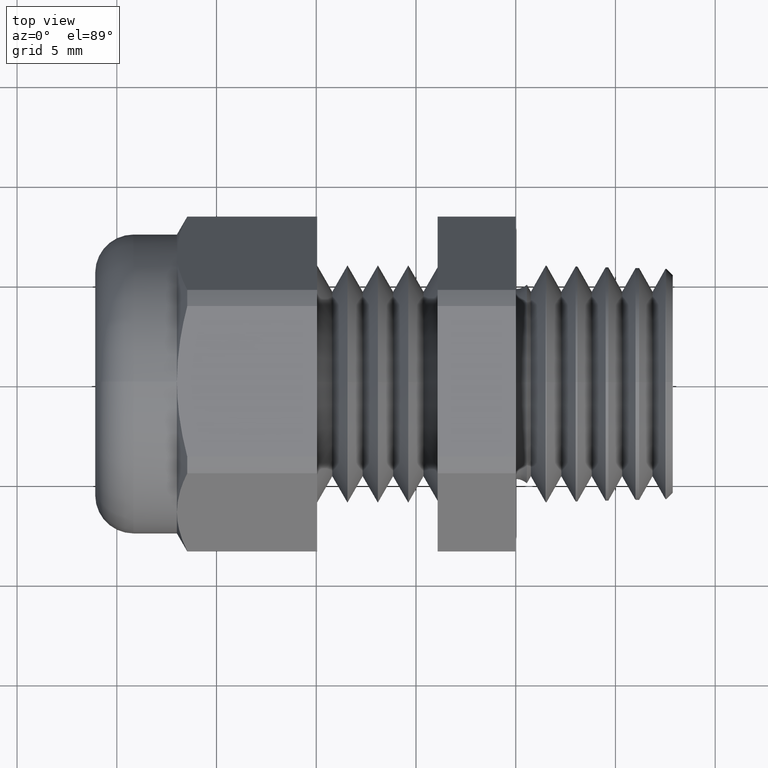
[diagram: clean part render]
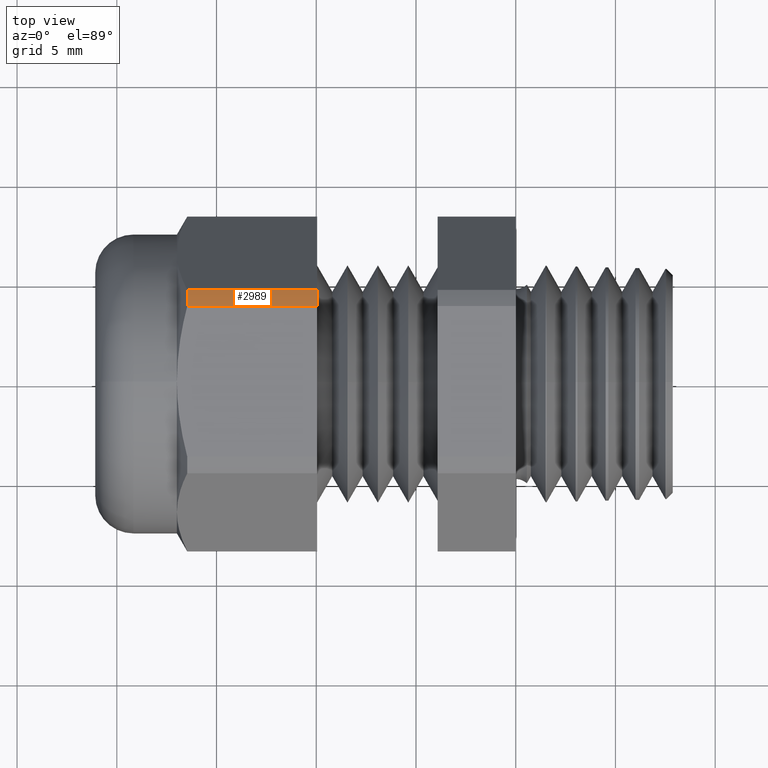
[diagram: same view with one face highlighted and labeled with its STEP entity id]
A machine part, top view. The second image highlights one B-rep face of the part: STEP entity #2989.
In plain terms, the highlighted cylindrical surface (partial cylindrical patch) has radius 8.3922 mm, axis along (-1, 0, 0).
Its self-contained STEP definition (entity closure, byte-faithful):
#77 = EDGE_LOOP ( 'NONE', ( #505, #485, #500, #492 ) ) ;
#485 = ORIENTED_EDGE ( 'NONE', *, *, #504, .T. ) ;
#486 = EDGE_CURVE ( 'NONE', #487, #488, #1767, .T. ) ;
#487 = VERTEX_POINT ( 'NONE', #1758 ) ;
#488 = VERTEX_POINT ( 'NONE', #1757 ) ;
#490 = VERTEX_POINT ( 'NONE', #1756 ) ;
#491 = EDGE_CURVE ( 'NONE', #501, #490, #1754, .T. ) ;
#492 = ORIENTED_EDGE ( 'NONE', *, *, #494, .F. ) ;
#494 = EDGE_CURVE ( 'NONE', #488, #490, #1755, .T. ) ;
#500 = ORIENTED_EDGE ( 'NONE', *, *, #491, .T. ) ;
#501 = VERTEX_POINT ( 'NONE', #1794 ) ;
#504 = EDGE_CURVE ( 'NONE', #487, #501, #1788, .T. ) ;
#505 = ORIENTED_EDGE ( 'NONE', *, *, #486, .F. ) ;
#1747 = DIRECTION ( 'NONE',  ( 1.000000000000000000, 0.0000000000000000000, 0.0000000000000000000 ) ) ;
#1748 = VECTOR ( 'NONE', #1747, 39.37007874015748100 ) ;
#1749 = CARTESIAN_POINT ( 'NONE',  ( -1.612607445236302800, 0.1810813248601898000, 0.2763579450402656200 ) ) ;
#1750 = DIRECTION ( 'NONE',  ( 0.0000000000000000000, 0.0000000000000000000, 1.000000000000000000 ) ) ;
#1751 = DIRECTION ( 'NONE',  ( -1.000000000000000000, 0.0000000000000000000, 0.0000000000000000000 ) ) ;
#1752 = CARTESIAN_POINT ( 'NONE',  ( -0.3920833333333335100, 0.0000000000000000000, 0.0000000000000000000 ) ) ;
#1753 = AXIS2_PLACEMENT_3D ( 'NONE', #1752, #1751, #1750 ) ;
#1754 = CIRCLE ( 'NONE', #1753, 0.3304000000000001400 ) ;
#1755 = LINE ( 'NONE', #1749, #1748 ) ;
#1756 = CARTESIAN_POINT ( 'NONE',  ( -0.3920833333333335100, 0.1810813248601898000, 0.2763579450402656200 ) ) ;
#1757 = CARTESIAN_POINT ( 'NONE',  ( -0.6483118004706871500, 0.1810813248601898000, 0.2763579450402656200 ) ) ;
#1758 = CARTESIAN_POINT ( 'NONE',  ( -0.6483118004706871500, 0.1487923385124394500, 0.2949999999999994300 ) ) ;
#1759 = DIRECTION ( 'NONE',  ( 0.0000000000000000000, 0.0000000000000000000, -1.000000000000000000 ) ) ;
#1760 = DIRECTION ( 'NONE',  ( -1.000000000000000000, 0.0000000000000000000, 0.0000000000000000000 ) ) ;
#1761 = CARTESIAN_POINT ( 'NONE',  ( -0.6483118004706871500, 0.0000000000000000000, 0.0000000000000000000 ) ) ;
#1762 = AXIS2_PLACEMENT_3D ( 'NONE', #1761, #1760, #1759 ) ;
#1767 = CIRCLE ( 'NONE', #1762, 0.3304000000000001400 ) ;
#1785 = DIRECTION ( 'NONE',  ( 1.000000000000000000, 0.0000000000000000000, 0.0000000000000000000 ) ) ;
#1786 = VECTOR ( 'NONE', #1785, 39.37007874015748100 ) ;
#1787 = CARTESIAN_POINT ( 'NONE',  ( -1.612607445236302800, 0.1487923385124394500, 0.2949999999999994800 ) ) ;
#1788 = LINE ( 'NONE', #1787, #1786 ) ;
#1794 = CARTESIAN_POINT ( 'NONE',  ( -0.3920833333333335100, 0.1487923385124394500, 0.2949999999999994800 ) ) ;
#2624 = DIRECTION ( 'NONE',  ( 0.0000000000000000000, 0.0000000000000000000, 1.000000000000000000 ) ) ;
#2625 = DIRECTION ( 'NONE',  ( -1.000000000000000000, 0.0000000000000000000, 0.0000000000000000000 ) ) ;
#2626 = CARTESIAN_POINT ( 'NONE',  ( -0.7238591030180623300, 0.0000000000000000000, 0.0000000000000000000 ) ) ;
#2627 = AXIS2_PLACEMENT_3D ( 'NONE', #2626, #2625, #2624 ) ;
#2629 = CYLINDRICAL_SURFACE ( 'NONE', #2627, 0.3304000000000001400 ) ;
#2630 = FACE_OUTER_BOUND ( 'NONE', #77, .T. ) ;
#2989 = ADVANCED_FACE ( 'NONE', ( #2630 ), #2629, .T. ) ;